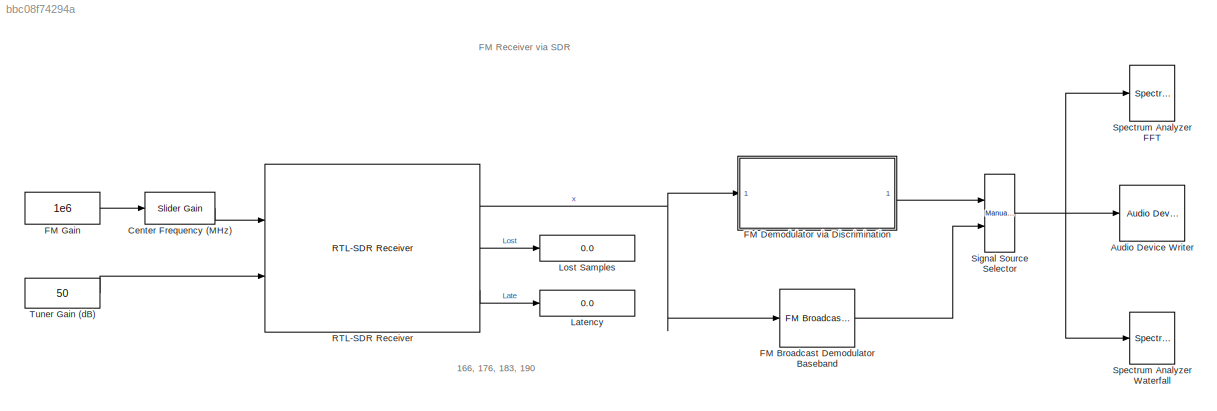
MODEL slx_bbc08f74294a
KIND model
CONFIG AbsTol = auto
CONFIG EnableMultiTasking = off
CONFIG FixedStep = auto
CONFIG MaxStep = auto
CONFIG MinStep = auto
CONFIG RelTol = 1e-3
CONFIG SampleTimeConstraint = Unconstrained
CONFIG Solver = VariableStepAuto
CONFIG SolverName = VariableStepAuto
CONFIG StartTime = 0.0
CONFIG StopTime = inf
BLOCK [Reference] Audio Device Writer  REF=dspsnks4/Audio Device
Writer
  Ports = [1]
  SourceBlock = dspsnks4/Audio Device\nWriter
  SourceProductBaseCode = DS
  SourceProductName = DSP System Toolbox
  SourceType = Audio Device Writer
BLOCK [Reference] Center Frequency (MHz)  REF=simulink/Math
Operations/Slider
Gain
  Ports = [1, 1]
  SourceBlock = simulink/Math\nOperations/Slider\nGain
  SourceProductBaseCode = SL
  SourceProductName = Simulink
  SourceType = Slider Gain
BLOCK [Reference] FM Broadcast Demodulator Baseband  REF=commanabbnd3/FM Broadcast
Demodulator
Baseband
  Ports = [1, 1]
  SourceBlock = commanabbnd3/FM Broadcast\nDemodulator\nBaseband
  SourceProductBaseCode = CM
  SourceProductName = Communications System Toolbox
  SourceType = FM Broadcast Demodulator Baseband
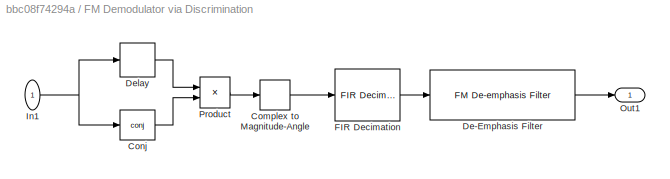
BLOCK [SubSystem] FM Demodulator via Discrimination 
  Ports = [1, 1]
  RequestExecContextInheritance = off
  ShowPortLabels = none
  Variant = off
BLOCK [ComplexToMagnitudeAngle] FM Demodulator via Discrimination /Complex to Magnitude-Angle
  Output = Angle
  Ports = [1, 1]
BLOCK [Math] FM Demodulator via Discrimination /Conj
  Operator = conj
  Ports = [1, 1]
BLOCK [Reference] FM Demodulator via Discrimination /De-Emphasis Filter  REF=rtlsdr_book_library/FM Demod Tools/FM De-emphasis Filter  (lib defined in slx_12414fe83126, slx_a1558d2e1022)
  Ports = [1, 1]
  SourceBlock = rtlsdr_book_library/FM Demod Tools/FM De-emphasis Filter
  SourceProductName = RTL-SDR Book Library
BLOCK [Delay] FM Demodulator via Discrimination /Delay
  DelayLength = 1
  InitialCondition = 0
  InputPortMap = u0
  InputProcessing = Columns as channels (frame based)
  Ports = [1, 1]
BLOCK [Reference] FM Demodulator via Discrimination /FIR Decimation   REF=dspmlti4/FIR
Decimation
  Ports = [1, 1]
  SourceBlock = dspmlti4/FIR\nDecimation
  SourceProductBaseCode = DS
  SourceProductName = DSP System Toolbox
  SourceType = FIR Decimation
  UserDataPersistent = on
BLOCK [Inport] FM Demodulator via Discrimination /In1
  IconDisplay = Port number
BLOCK [Outport] FM Demodulator via Discrimination /Out1
  IconDisplay = Port number
BLOCK [Product] FM Demodulator via Discrimination /Product
  InputSameDT = off
  OutDataTypeStr = Inherit: Inherit via internal rule
  Ports = [2, 1]
  RndMeth = Floor
  SaturateOnIntegerOverflow = off
BLOCK [Constant] FM Gain
  FramePeriod = -1
  SampleTime = -1
  Value = 1e6
  VectorParams1D = off
BLOCK [Display] Latency
  Decimation = 1
  Ports = [1]
BLOCK [Display] Lost Samples
  Decimation = 1
  Ports = [1]
BLOCK [Reference] RTL-SDR Receiver  REF=sdrrlib/RTL-SDR
Receiver
  Ports = [2, 3]
  SourceBlock = sdrrlib/RTL-SDR\nReceiver
  SourceLibraryInfo = This block requires <a href="http://www.mathworks.com/hardware-support/rtl-sdr.html">Communications System Toolbox Support Package for RTL-SDR Radio</a>
  SourceProductBaseCode = RTLSDR
  SourceProductName = Communications System Toolbox Support Package for RTL-SDR Radio
  SourceType = RTL-SDR Receiver
BLOCK [Reference] Signal Source Selector  REF=simulink/Signal
Routing/Manual
Variant Source
  Ports = [2, 1]
  SourceBlock = simulink/Signal\nRouting/Manual\nVariant Source
  SourceProductBaseCode = SL
  SourceProductName = Simulink
  SourceType = ManualVariantSource
BLOCK [SpectrumAnalyzer] Spectrum Analyzer FFT
  NumInputPorts = 1
  Ports = [1]
  ScopeSpecificationString = spbscopes.SpectrumAnalyzerBlockCfg('CurrentConfiguration', extmgr.ConfigurationSet(extmgr.Configuration('Core','General UI',true,'ShowPlaybackToolbar',false,'ShowStatusbar',false,'FigureColor',[1 1 1]),extmgr.Configuration('Core','Source UI',true),extmgr.Configuration('Sources','WiredSimulink',true),extmgr.Configuration('Sources','Simulink',false),extmgr.Configuration('Sources','File',false),extmg...<+2440ch>
  StartFcn = startfcn_spectrum_analyzer;
BLOCK [SpectrumAnalyzer] Spectrum Analyzer Waterfall
  NumInputPorts = 1
  Ports = [1]
  ScopeSpecificationString = spbscopes.SpectrumAnalyzerBlockCfg('CurrentConfiguration', extmgr.ConfigurationSet(extmgr.Configuration('Core','General UI',true,'ShowPlaybackToolbar',false,'ShowStatusbar',false,'FigureColor',[0.941176470588235 0.941176470588235 0.941176470588235]),extmgr.Configuration('Core','Source UI',true),extmgr.Configuration('Sources','WiredSimulink',true),extmgr.Configuration('Sources','Streaming',false),e...<+7911ch>
  StartFcn = startfcn_spectrum_analyzer;
BLOCK [Constant] Tuner Gain (dB)
  Value = 50
ANNOTATION (root): 166, 176, 183, 190
ANNOTATION (root): FM Receiver via SDR
LINE Center Frequency (MHz):1 -> RTL-SDR Receiver:1
LINE FM Broadcast Demodulator Baseband:1 -> Signal Source Selector:2
LINE FM Demodulator via Discrimination /Complex to Magnitude-Angle:1 -> FM Demodulator via Discrimination /FIR Decimation :1
LINE FM Demodulator via Discrimination /Conj:1 -> FM Demodulator via Discrimination /Product:2
LINE FM Demodulator via Discrimination /De-Emphasis Filter:1 -> FM Demodulator via Discrimination /Out1:1
LINE FM Demodulator via Discrimination /Delay:1 -> FM Demodulator via Discrimination /Product:1
LINE FM Demodulator via Discrimination /FIR Decimation :1 -> FM Demodulator via Discrimination /De-Emphasis Filter:1
NET FM Demodulator via Discrimination /In1:1 -> FM Demodulator via Discrimination /Conj:1, FM Demodulator via Discrimination /Delay:1
LINE FM Demodulator via Discrimination /Product:1 -> FM Demodulator via Discrimination /Complex to Magnitude-Angle:1
LINE FM Demodulator via Discrimination :1 -> Signal Source Selector:1
LINE FM Gain:1 -> Center Frequency (MHz):1
NET RTL-SDR Receiver:1 -> FM Broadcast Demodulator Baseband:1, FM Demodulator via Discrimination :1
LINE RTL-SDR Receiver:2 -> Lost Samples:1
LINE RTL-SDR Receiver:3 -> Latency:1
NET Signal Source Selector:1 -> Audio Device Writer:1, Spectrum Analyzer FFT:1, Spectrum Analyzer Waterfall:1
LINE Tuner Gain (dB):1 -> RTL-SDR Receiver:2
note: NET lines group one-source signal fan-out (src -> all destinations, sorted); 1:1 wires keep LINE
